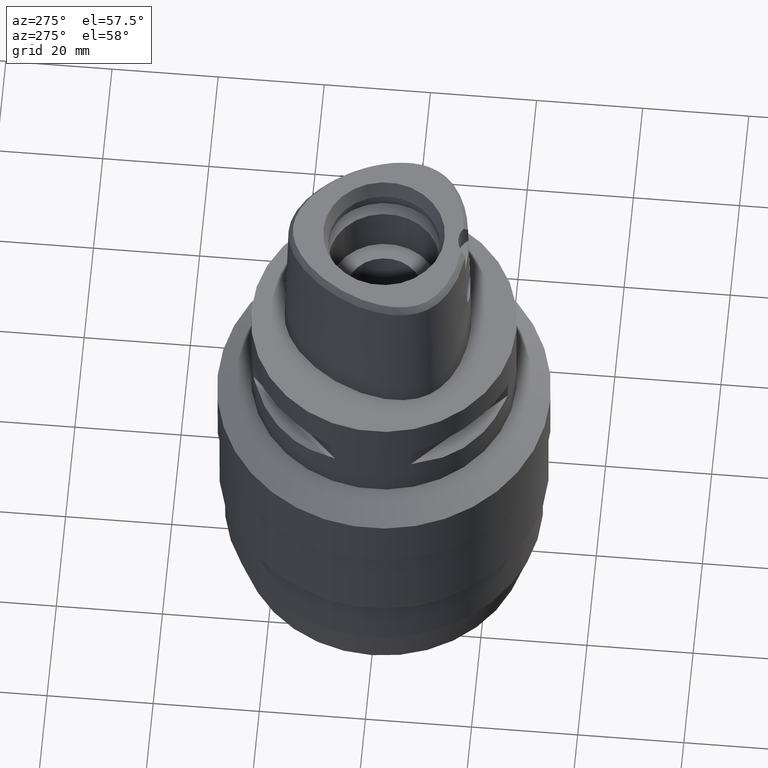
[diagram: clean part render]
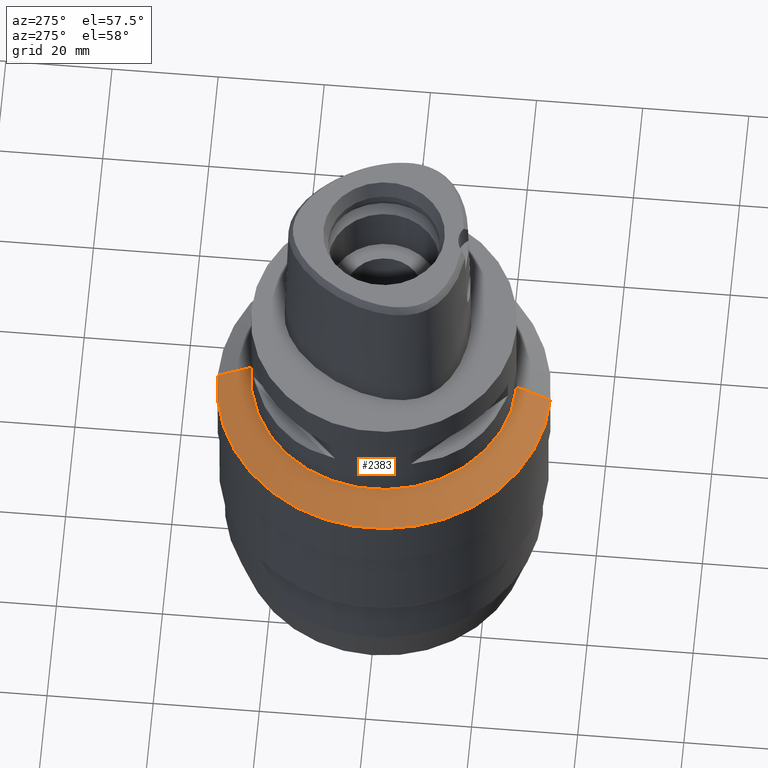
[diagram: same view with one face highlighted and labeled with its STEP entity id]
A machine part, auxiliary view. The second image highlights one B-rep face of the part: STEP entity #2383.
In plain terms, the highlighted conical surface has half-angle 60 deg.
Its self-contained STEP definition (entity closure, byte-faithful):
#492=DIRECTION('',(0.E0,8.660254037846E-1,-4.999999999998E-1));
#493=VECTOR('',#492,7.332348418706E0);
#494=CARTESIAN_POINT('',(0.E0,2.5E1,-2.013382579065E1));
#495=LINE('',#494,#493);
#515=CARTESIAN_POINT('',(0.E0,0.E0,-2.013382579064E1));
#516=DIRECTION('',(0.E0,0.E0,1.E0));
#517=DIRECTION('',(0.E0,1.E0,0.E0));
#518=AXIS2_PLACEMENT_3D('',#515,#516,#517);
#523=DIRECTION('',(0.E0,-8.660254037846E-1,-4.999999999998E-1));
#524=VECTOR('',#523,7.332348418706E0);
#525=CARTESIAN_POINT('',(0.E0,-2.5E1,-2.013382579065E1));
#526=LINE('',#525,#524);
#530=CARTESIAN_POINT('',(0.E0,0.E0,-2.38E1));
#531=DIRECTION('',(0.E0,0.E0,-1.E0));
#532=DIRECTION('',(0.E0,-1.E0,0.E0));
#533=AXIS2_PLACEMENT_3D('',#530,#531,#532);
#1486=CARTESIAN_POINT('',(0.E0,2.5E1,-2.013382579065E1));
#1487=VERTEX_POINT('',#1486);
#1488=CARTESIAN_POINT('',(0.E0,-2.5E1,-2.013382579065E1));
#1489=VERTEX_POINT('',#1488);
#1542=CARTESIAN_POINT('',(0.E0,3.135E1,-2.38E1));
#1543=VERTEX_POINT('',#1542);
#1544=CARTESIAN_POINT('',(0.E0,-3.135E1,-2.38E1));
#1545=VERTEX_POINT('',#1544);
#2371=CARTESIAN_POINT('',(0.E0,0.E0,-2.196691289532E1));
#2372=DIRECTION('',(0.E0,0.E0,-1.E0));
#2373=DIRECTION('',(0.E0,-1.E0,0.E0));
#2374=AXIS2_PLACEMENT_3D('',#2371,#2372,#2373);
#2375=CONICAL_SURFACE('',#2374,2.8175E1,6.E1);
#2376=ORIENTED_EDGE('',*,*,#2361,.F.);
#2377=ORIENTED_EDGE('',*,*,#2266,.T.);
#2378=ORIENTED_EDGE('',*,*,#2365,.T.);
#2380=ORIENTED_EDGE('',*,*,#2379,.T.);
#2381=EDGE_LOOP('',(#2376,#2377,#2378,#2380));
#2382=FACE_OUTER_BOUND('',#2381,.F.);
#519=CIRCLE('',#518,2.5E1);
#534=CIRCLE('',#533,3.135E1);
#2266=EDGE_CURVE('',#1487,#1489,#519,.T.);
#2361=EDGE_CURVE('',#1487,#1543,#495,.T.);
#2365=EDGE_CURVE('',#1489,#1545,#526,.T.);
#2379=EDGE_CURVE('',#1545,#1543,#534,.T.);
#2383=ADVANCED_FACE('',(#2382),#2375,.T.);